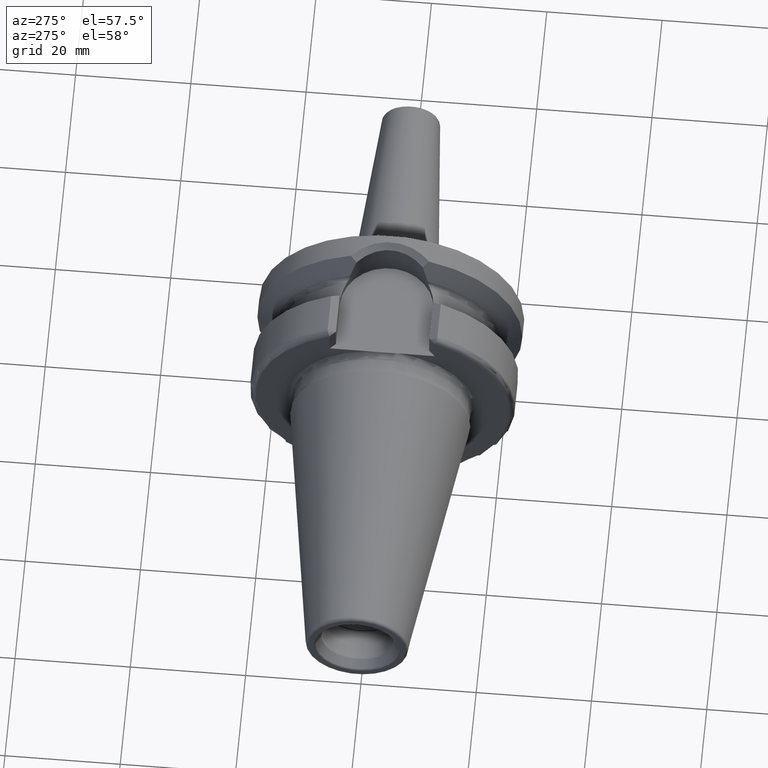
[diagram: clean part render]
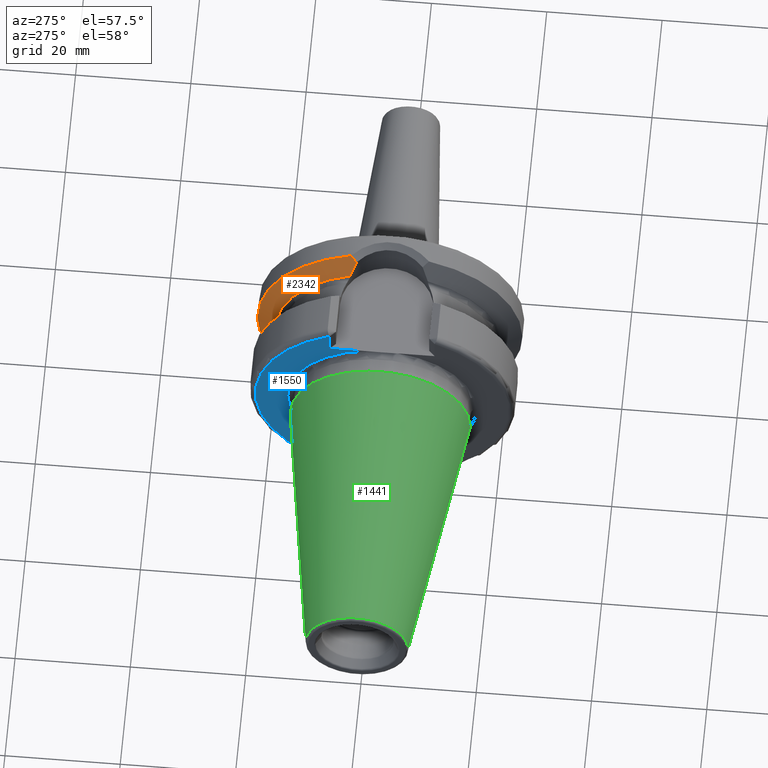
[diagram: same view with three faces highlighted in distinct colors, each labeled with its STEP entity id]
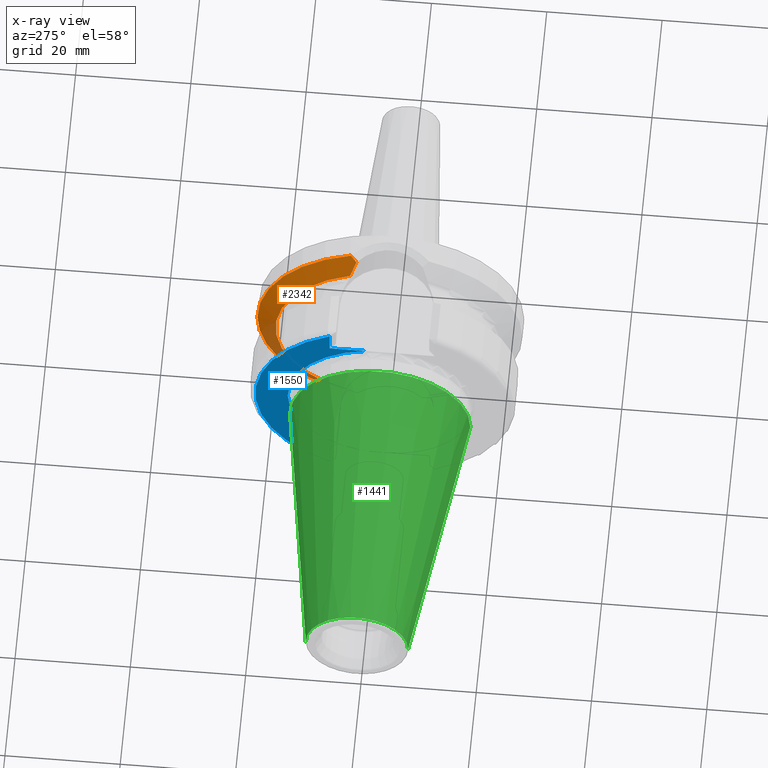
[diagram: x-ray of the same camera — body ghosted, the three highlighted faces saturated]
A machine part, auxiliary view with three faces highlighted in distinct colors.
The next image is the same camera in x-ray (body ghosted, the three faces saturated) — at least one of them is partly hidden behind the body in this view.
Their STEP definitions:

[orange] entity #2342 — the highlighted conical surface has half-angle 60 deg.
#244=CARTESIAN_POINT('',(1.754907584126E1,0.E0,0.E0));
#245=DIRECTION('',(1.E0,0.E0,0.E0));
#246=DIRECTION('',(0.E0,2.802529554758E-1,-9.599261851554E-1));
#247=AXIS2_PLACEMENT_3D('',#244,#245,#246);
#321=CARTESIAN_POINT('',(1.56375E1,6.740639342822E0,-1.848861619239E1));
#322=CARTESIAN_POINT('',(1.580141693669E1,6.631635191826E0,-1.883055017756E1));
#323=CARTESIAN_POINT('',(1.612022880799E1,6.402379286160E0,-1.949407617939E1));
#324=CARTESIAN_POINT('',(1.657016835682E1,6.026547681230E0,-2.042714206942E1));
#325=CARTESIAN_POINT('',(1.685106915981E1,5.755169905209E0,-2.100794481881E1));
#326=CARTESIAN_POINT('',(1.698655422750E1,5.614445679829E0,-2.128775096196E1));
#519=CARTESIAN_POINT('',(1.685762423454E1,5.745354805374E0,2.102137764954E1));
#520=CARTESIAN_POINT('',(1.667158652396E1,5.930008876853E0,2.063686487213E1));
#521=CARTESIAN_POINT('',(1.628166811893E1,6.281182202369E0,1.982963416011E1));
#522=CARTESIAN_POINT('',(1.585764706705E1,6.594242365047E0,1.894784734616E1));
#523=CARTESIAN_POINT('',(1.56375E1,6.740639342822E0,1.848861619239E1));
#749=CARTESIAN_POINT('',(1.56375E1,0.E0,0.E0));
#750=DIRECTION('',(-1.E0,0.E0,0.E0));
#751=DIRECTION('',(0.E0,3.425286351209E-1,9.395073890727E-1));
#752=AXIS2_PLACEMENT_3D('',#749,#750,#751);
#766=CARTESIAN_POINT('',(1.698655422750E1,5.614445679829E0,-2.128775096196E1));
#767=CARTESIAN_POINT('',(1.704704785143E1,5.704776797294E0,-2.137228787957E1));
#768=CARTESIAN_POINT('',(1.716937480752E1,5.886585064290E0,-2.154284936475E1));
#769=CARTESIAN_POINT('',(1.735689240414E1,6.162776097467E0,-2.180317574240E1));
#770=CARTESIAN_POINT('',(1.748456978985E1,6.349213293706E0,-2.197969674892E1));
#771=CARTESIAN_POINT('',(1.754907584126E1,6.443015446388E0,-2.206870299672E1));
#773=CARTESIAN_POINT('',(1.754907584126E1,0.E0,0.E0));
#774=DIRECTION('',(1.E0,0.E0,0.E0));
#775=DIRECTION('',(0.E0,1.E0,0.E0));
#776=AXIS2_PLACEMENT_3D('',#773,#774,#775);
#918=CARTESIAN_POINT('',(1.754907584126E1,6.761871244710E0,2.197310167614E1));
#919=CARTESIAN_POINT('',(1.746924165528E1,6.646331333623E0,2.186398102541E1));
#920=CARTESIAN_POINT('',(1.731157385698E1,6.416997798511E0,2.164799004205E1));
#921=CARTESIAN_POINT('',(1.708106887013E1,6.078162644323E0,2.133072844085E1));
#922=CARTESIAN_POINT('',(1.693143417745E1,5.855724896324E0,2.112374379343E1));
#923=CARTESIAN_POINT('',(1.685762423454E1,5.745354805374E0,2.102137764954E1));
#1178=CARTESIAN_POINT('',(1.56375E1,6.740639342822E0,1.848861619239E1));
#1179=CARTESIAN_POINT('',(1.56375E1,6.740639342822E0,-1.848861619239E1));
#1180=VERTEX_POINT('',#1178);
#1181=VERTEX_POINT('',#1179);
#1194=CARTESIAN_POINT('',(1.754907584126E1,2.299E1,0.E0));
#1195=CARTESIAN_POINT('',(1.754907584126E1,6.761871244710E0,2.197310167614E1));
#1196=VERTEX_POINT('',#1194);
#1197=VERTEX_POINT('',#1195);
#1208=CARTESIAN_POINT('',(1.754907584126E1,6.443015446388E0,-2.206870299672E1));
#1209=VERTEX_POINT('',#1208);
#1297=VERTEX_POINT('',#519);
#1303=VERTEX_POINT('',#326);
#2325=CARTESIAN_POINT('',(1.659328792063E1,0.E0,0.E0));
#2326=DIRECTION('',(1.E0,0.E0,0.E0));
#2327=DIRECTION('',(0.E0,-1.E0,0.E0));
#2328=AXIS2_PLACEMENT_3D('',#2325,#2326,#2327);
#2329=CONICAL_SURFACE('',#2328,2.133452676021E1,6.E1);
#2330=ORIENTED_EDGE('',*,*,#1783,.T.);
#2331=ORIENTED_EDGE('',*,*,#1746,.T.);
#2333=ORIENTED_EDGE('',*,*,#2332,.T.);
#2334=ORIENTED_EDGE('',*,*,#1696,.T.);
#2336=ORIENTED_EDGE('',*,*,#2335,.T.);
#2338=ORIENTED_EDGE('',*,*,#2337,.T.);
#2339=ORIENTED_EDGE('',*,*,#1936,.T.);
#2340=EDGE_LOOP('',(#2330,#2331,#2333,#2334,#2336,#2338,#2339));
#2341=FACE_OUTER_BOUND('',#2340,.F.);
#2342=ADVANCED_FACE('',(#2341),#2329,.T.);
#248=CIRCLE('',#247,2.299E1);
#327=B_SPLINE_CURVE_WITH_KNOTS('',3,(#321,#322,#323,#324,#325,#326),
.UNSPECIFIED.,.F.,.F.,(4,1,1,4),(0.E0,3.333333333333E-1,6.666666666667E-1,1.E0),
.UNSPECIFIED.);
#524=B_SPLINE_CURVE_WITH_KNOTS('',3,(#519,#520,#521,#522,#523),.UNSPECIFIED.,
.F.,.F.,(4,1,4),(0.E0,5.E-1,1.E0),.UNSPECIFIED.);
#753=CIRCLE('',#752,1.967905352042E1);
#772=B_SPLINE_CURVE_WITH_KNOTS('',3,(#766,#767,#768,#769,#770,#771),
.UNSPECIFIED.,.F.,.F.,(4,1,1,4),(0.E0,3.333333333333E-1,6.666666666667E-1,1.E0),
.UNSPECIFIED.);
#777=CIRCLE('',#776,2.299E1);
#924=B_SPLINE_CURVE_WITH_KNOTS('',3,(#918,#919,#920,#921,#922,#923),
.UNSPECIFIED.,.F.,.F.,(4,1,1,4),(0.E0,3.333333333333E-1,6.666666666667E-1,1.E0),
.UNSPECIFIED.);
#1696=EDGE_CURVE('',#1209,#1196,#248,.T.);
#1746=EDGE_CURVE('',#1181,#1303,#327,.T.);
#1783=EDGE_CURVE('',#1180,#1181,#753,.T.);
#1936=EDGE_CURVE('',#1297,#1180,#524,.T.);
#2332=EDGE_CURVE('',#1303,#1209,#772,.T.);
#2335=EDGE_CURVE('',#1196,#1197,#777,.T.);
#2337=EDGE_CURVE('',#1197,#1297,#924,.T.);

[blue] entity #1550 — the highlighted planar face has unit normal (1, 0, 0).
#96=CARTESIAN_POINT('',(2.E0,0.E0,0.E0));
#97=DIRECTION('',(-1.E0,0.E0,0.E0));
#98=DIRECTION('',(0.E0,1.E0,0.E0));
#99=AXIS2_PLACEMENT_3D('',#96,#97,#98);
#127=DIRECTION('',(4.744939476517E-6,4.745345851296E-6,9.999999999775E-1));
#128=VECTOR('',#127,3.871014232028E0);
#129=CARTESIAN_POINT('',(1.999981632272E0,9.094981630699E0,-2.002101423194E1));
#130=LINE('',#129,#128);
#131=DIRECTION('',(-7.287242154960E-6,-7.289057609279E-6,9.999999999469E-1));
#132=VECTOR('',#131,3.871026254550E0);
#133=CARTESIAN_POINT('',(2.E0,9.095E0,1.615E1));
#134=LINE('',#133,#132);
#598=CARTESIAN_POINT('',(2.E0,0.E0,0.E0));
#599=DIRECTION('',(-1.E0,0.E0,0.E0));
#600=DIRECTION('',(0.E0,4.135972556779E-1,9.104599442566E-1));
#601=AXIS2_PLACEMENT_3D('',#598,#599,#600);
#674=DIRECTION('',(0.E0,1.E0,0.E0));
#675=VECTOR('',#674,6.389796680469E0);
#676=CARTESIAN_POINT('',(2.E0,2.705203319531E0,1.615E1));
#677=LINE('',#676,#675);
#695=CARTESIAN_POINT('',(2.E0,0.E0,0.E0));
#696=DIRECTION('',(1.E0,0.E0,0.E0));
#697=DIRECTION('',(0.E0,1.E0,0.E0));
#698=AXIS2_PLACEMENT_3D('',#695,#696,#697);
#732=DIRECTION('',(0.E0,-1.E0,0.E0));
#733=VECTOR('',#732,6.389796680469E0);
#734=CARTESIAN_POINT('',(2.E0,9.095E0,-1.615E1));
#735=LINE('',#734,#733);
#1210=CARTESIAN_POINT('',(2.E0,1.6375E1,0.E0));
#1212=VERTEX_POINT('',#1210);
#1280=CARTESIAN_POINT('',(2.E0,2.705203319531E0,1.615E1));
#1281=VERTEX_POINT('',#1280);
#1288=CARTESIAN_POINT('',(2.E0,2.705203319531E0,-1.615E1));
#1289=VERTEX_POINT('',#1288);
#1322=CARTESIAN_POINT('',(2.E0,9.095023821277E0,2.002100501198E1));
#1324=VERTEX_POINT('',#1322);
#1326=CARTESIAN_POINT('',(2.E0,9.095E0,1.615E1));
#1327=VERTEX_POINT('',#1326);
#1336=CARTESIAN_POINT('',(1.999981632272E0,9.094981630699E0,-2.002101423194E1));
#1337=CARTESIAN_POINT('',(2.E0,9.095E0,-1.615E1));
#1338=VERTEX_POINT('',#1336);
#1339=VERTEX_POINT('',#1337);
#1530=CARTESIAN_POINT('',(2.E0,0.E0,0.E0));
#1531=DIRECTION('',(1.E0,0.E0,0.E0));
#1532=DIRECTION('',(0.E0,-1.E0,0.E0));
#1533=AXIS2_PLACEMENT_3D('',#1530,#1531,#1532);
#1534=PLANE('',#1533);
#1536=ORIENTED_EDGE('',*,*,#1535,.F.);
#1538=ORIENTED_EDGE('',*,*,#1537,.F.);
#1540=ORIENTED_EDGE('',*,*,#1539,.F.);
#1542=ORIENTED_EDGE('',*,*,#1541,.F.);
#1544=ORIENTED_EDGE('',*,*,#1543,.F.);
#1545=ORIENTED_EDGE('',*,*,#1516,.T.);
#1547=ORIENTED_EDGE('',*,*,#1546,.F.);
#1548=EDGE_LOOP('',(#1536,#1538,#1540,#1542,#1544,#1545,#1547));
#1549=FACE_OUTER_BOUND('',#1548,.F.);
#1550=ADVANCED_FACE('',(#1549),#1534,.F.);
#100=CIRCLE('',#99,1.6375E1);
#602=CIRCLE('',#601,2.199E1);
#699=CIRCLE('',#698,1.6375E1);
#1516=EDGE_CURVE('',#1212,#1289,#100,.T.);
#1535=EDGE_CURVE('',#1338,#1339,#130,.T.);
#1537=EDGE_CURVE('',#1324,#1338,#602,.T.);
#1539=EDGE_CURVE('',#1327,#1324,#134,.T.);
#1541=EDGE_CURVE('',#1281,#1327,#677,.T.);
#1543=EDGE_CURVE('',#1212,#1281,#699,.T.);
#1546=EDGE_CURVE('',#1339,#1289,#735,.T.);

[green] entity #1441 — the highlighted conical surface has half-angle 8.298 deg.
#37=CARTESIAN_POINT('',(-4.797215933459E1,0.E0,0.E0));
#38=DIRECTION('',(1.E0,0.E0,0.E0));
#39=DIRECTION('',(0.E0,1.E0,0.E0));
#40=AXIS2_PLACEMENT_3D('',#37,#38,#39);
#42=CARTESIAN_POINT('',(-1.629230650827E0,0.E0,0.E0));
#43=DIRECTION('',(1.E0,0.E0,0.E0));
#44=DIRECTION('',(0.E0,1.E0,0.E0));
#45=AXIS2_PLACEMENT_3D('',#42,#43,#44);
#47=DIRECTION('',(-9.895312636440E-1,-1.443186691705E-1,0.E0));
#48=VECTOR('',#47,4.683321324594E1);
#49=CARTESIAN_POINT('',(-1.629230650827E0,1.563738406209E1,0.E0));
#50=LINE('',#49,#48);
#51=DIRECTION('',(-9.895312636440E-1,1.443186691705E-1,0.E0));
#52=VECTOR('',#51,4.683321324594E1);
#53=CARTESIAN_POINT('',(-1.629230650827E0,-1.563738406209E1,0.E0));
#54=LINE('',#53,#52);
#1138=CARTESIAN_POINT('',(-4.797215933459E1,8.878477053461E0,0.E0));
#1140=VERTEX_POINT('',#1138);
#1142=CARTESIAN_POINT('',(-4.797215933459E1,-8.878477053461E0,0.E0));
#1144=VERTEX_POINT('',#1142);
#1353=CARTESIAN_POINT('',(-1.629230650827E0,1.563738406209E1,0.E0));
#1354=VERTEX_POINT('',#1353);
#1355=CARTESIAN_POINT('',(-1.629230650827E0,-1.563738406209E1,0.E0));
#1356=VERTEX_POINT('',#1355);
#1427=CARTESIAN_POINT('',(-2.480069499271E1,0.E0,0.E0));
#1428=DIRECTION('',(1.E0,0.E0,0.E0));
#1429=DIRECTION('',(0.E0,-1.E0,0.E0));
#1430=AXIS2_PLACEMENT_3D('',#1427,#1428,#1429);
#1431=CONICAL_SURFACE('',#1430,1.225793055778E1,8.297826828206E0);
#1433=ORIENTED_EDGE('',*,*,#1432,.F.);
#1435=ORIENTED_EDGE('',*,*,#1434,.T.);
#1437=ORIENTED_EDGE('',*,*,#1436,.T.);
#1438=ORIENTED_EDGE('',*,*,#1420,.F.);
#1439=EDGE_LOOP('',(#1433,#1435,#1437,#1438));
#1440=FACE_OUTER_BOUND('',#1439,.F.);
#1441=ADVANCED_FACE('',(#1440),#1431,.T.);
#41=CIRCLE('',#40,8.878477053461E0);
#46=CIRCLE('',#45,1.563738406209E1);
#1420=EDGE_CURVE('',#1140,#1144,#41,.T.);
#1432=EDGE_CURVE('',#1354,#1140,#50,.T.);
#1434=EDGE_CURVE('',#1354,#1356,#46,.T.);
#1436=EDGE_CURVE('',#1356,#1144,#54,.T.);